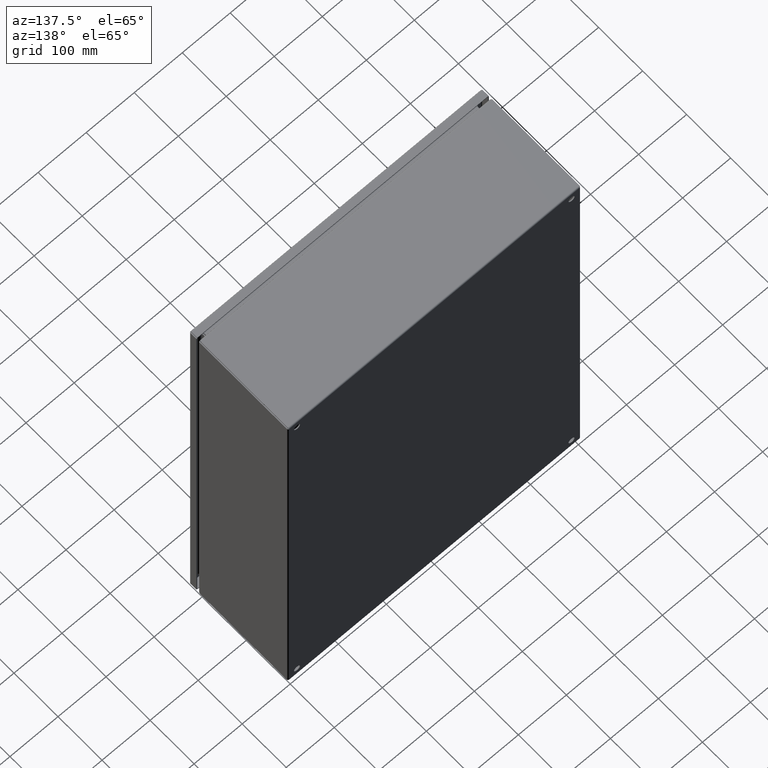
[diagram: clean part render]
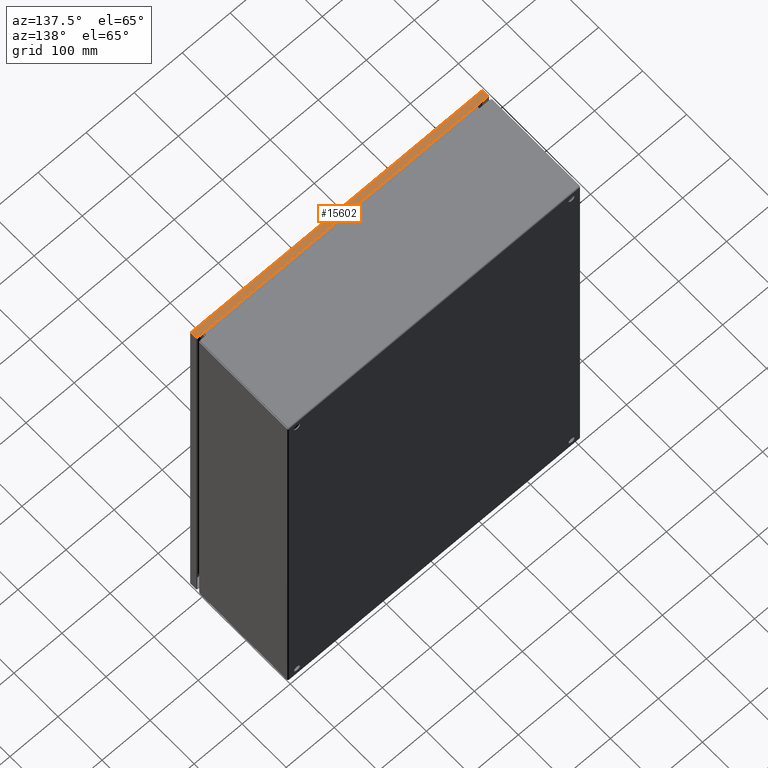
[diagram: same view with one face highlighted and labeled with its STEP entity id]
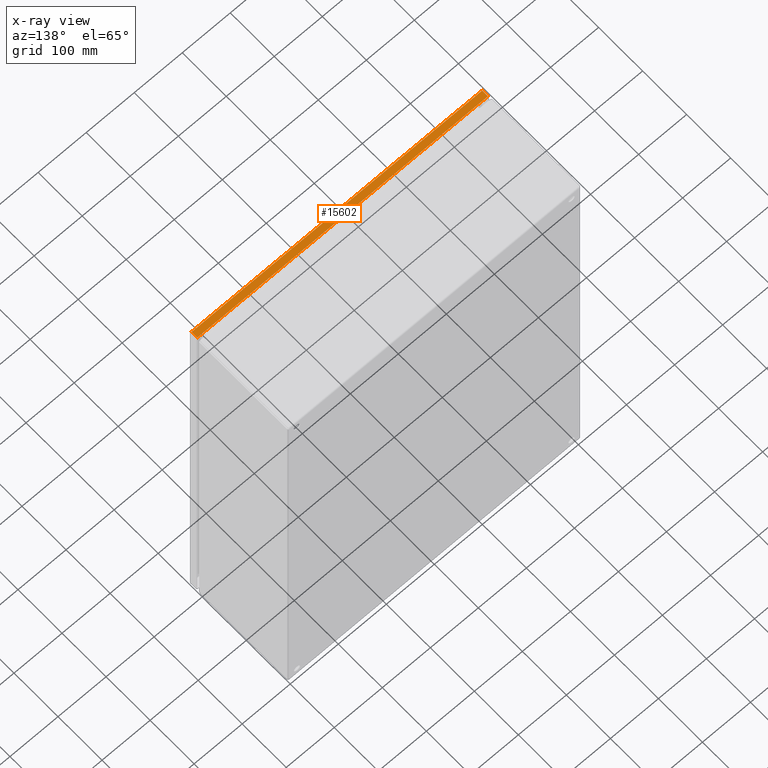
[diagram: x-ray of the same camera — body ghosted, the highlighted face saturated]
A machine part, auxiliary view. The second image highlights one B-rep face of the part: STEP entity #15602.
The next image is the same camera in x-ray: the body ghosted, the highlighted face saturated — about 0% of this face is hidden behind the body in this view.
In plain terms, the highlighted planar face has unit normal (0, 0, 1).
Its self-contained STEP definition (entity closure, byte-faithful):
#1183 = EDGE_CURVE ( 'NONE', #3182, #15421, #11584, .T. ) ;
#1353 = CARTESIAN_POINT ( 'NONE',  ( 11.90092125984250337, -8.728999999999992099, 17.98399999999999821 ) ) ;
#1496 = LINE ( 'NONE', #26880, #3019 ) ;
#3019 = VECTOR ( 'NONE', #15569, 39.37007874015748143 ) ;
#3078 = CARTESIAN_POINT ( 'NONE',  ( -11.92392125984253326, -8.774499999999999744, 17.98399999999999821 ) ) ;
#3182 = VERTEX_POINT ( 'NONE', #9925 ) ;
#4467 = CARTESIAN_POINT ( 'NONE',  ( -11.88800000000001411, -8.212000000000001521, 17.98399999999999821 ) ) ;
#4676 = CARTESIAN_POINT ( 'NONE',  ( -11.92392125984253326, -8.728999999999992099, 17.98399999999999821 ) ) ;
#5086 = DIRECTION ( 'NONE',  ( -1.000000000000000000, -0.0000000000000000000, 0.0000000000000000000 ) ) ;
#5100 = LINE ( 'NONE', #3078, #5368 ) ;
#5368 = VECTOR ( 'NONE', #14534, 39.37007874015748143 ) ;
#5504 = VECTOR ( 'NONE', #11194, 39.37007874015748143 ) ;
#8152 = ORIENTED_EDGE ( 'NONE', *, *, #1183, .T. ) ;
#8756 = ORIENTED_EDGE ( 'NONE', *, *, #29294, .F. ) ;
#9142 = ORIENTED_EDGE ( 'NONE', *, *, #29644, .T. ) ;
#9609 = VERTEX_POINT ( 'NONE', #4676 ) ;
#9925 = CARTESIAN_POINT ( 'NONE',  ( 11.90092125984250337, -8.212000000000001521, 17.98399999999999821 ) ) ;
#10940 = DIRECTION ( 'NONE',  ( 0.0000000000000000000, -1.000000000000000000, 6.123031769111889989E-17 ) ) ;
#11194 = DIRECTION ( 'NONE',  ( -0.0000000000000000000, 1.000000000000000000, -6.123031769111889989E-17 ) ) ;
#11584 = LINE ( 'NONE', #4467, #27279 ) ;
#11750 = CARTESIAN_POINT ( 'NONE',  ( -11.92392125984253148, -8.212000000000001521, 17.98399999999999821 ) ) ;
#12857 = ORIENTED_EDGE ( 'NONE', *, *, #17999, .T. ) ;
#13040 = VERTEX_POINT ( 'NONE', #1353 ) ;
#13664 = CARTESIAN_POINT ( 'NONE',  ( 11.90092125984250337, -8.774499999999999744, 17.98399999999999821 ) ) ;
#14534 = DIRECTION ( 'NONE',  ( -3.885294924322510055E-15, -1.000000000000000000, -0.0000000000000000000 ) ) ;
#15421 = VERTEX_POINT ( 'NONE', #11750 ) ;
#15569 = DIRECTION ( 'NONE',  ( -1.000000000000000000, -3.749151804555340178E-33, -6.123031769111889989E-17 ) ) ;
#15602 = ADVANCED_FACE ( 'NONE', ( #29821 ), #25159, .T. ) ;
#16830 = EDGE_LOOP ( 'NONE', ( #8756, #9142, #8152, #12857 ) ) ;
#17999 = EDGE_CURVE ( 'NONE', #15421, #9609, #5100, .T. ) ;
#20213 = CARTESIAN_POINT ( 'NONE',  ( -11.88800000000001411, -8.774499999999999744, 17.98399999999999821 ) ) ;
#20660 = DIRECTION ( 'NONE',  ( 0.0000000000000000000, 6.123031769111889989E-17, 1.000000000000000000 ) ) ;
#25159 = PLANE ( 'NONE',  #29581 ) ;
#25290 = LINE ( 'NONE', #13664, #5504 ) ;
#26880 = CARTESIAN_POINT ( 'NONE',  ( -11.88800000000001411, -8.728999999999983217, 17.98399999999999821 ) ) ;
#27279 = VECTOR ( 'NONE', #5086, 39.37007874015748143 ) ;
#29294 = EDGE_CURVE ( 'NONE', #13040, #9609, #1496, .T. ) ;
#29581 = AXIS2_PLACEMENT_3D ( 'NONE', #20213, #20660, #10940 ) ;
#29644 = EDGE_CURVE ( 'NONE', #13040, #3182, #25290, .T. ) ;
#29821 = FACE_OUTER_BOUND ( 'NONE', #16830, .T. ) ;